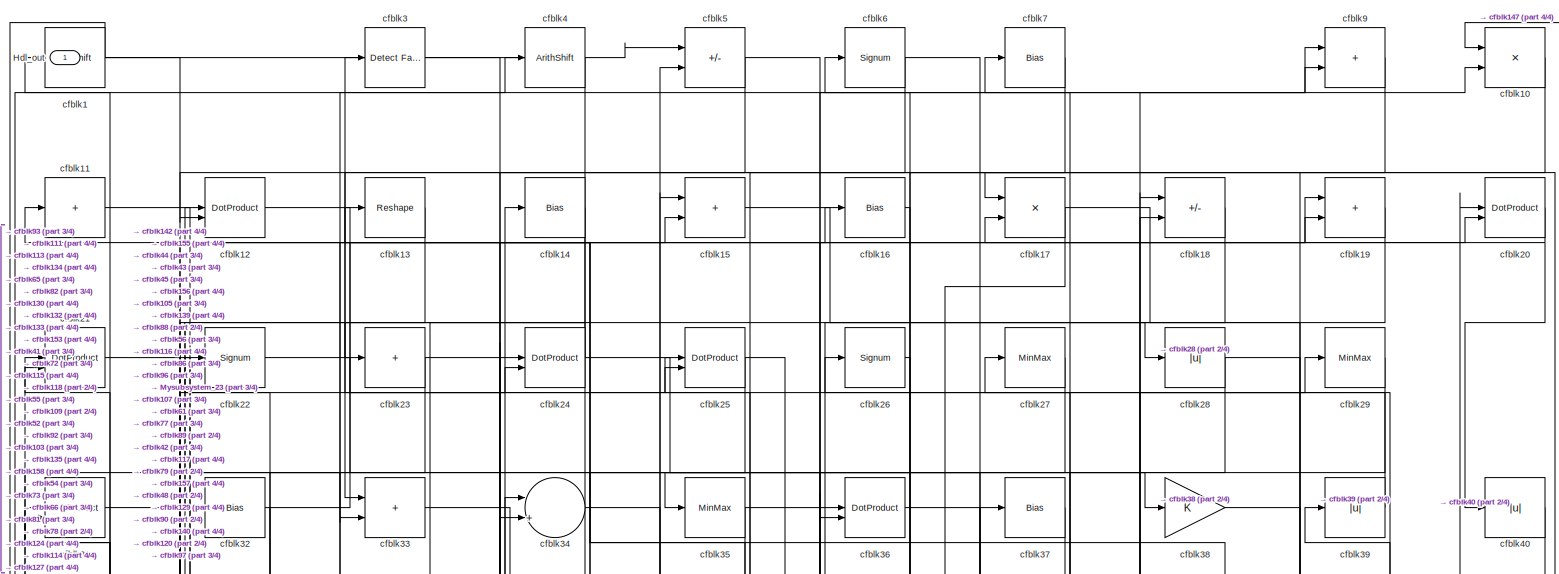
[diagram: root canvas - part 1/4, full width, top band]
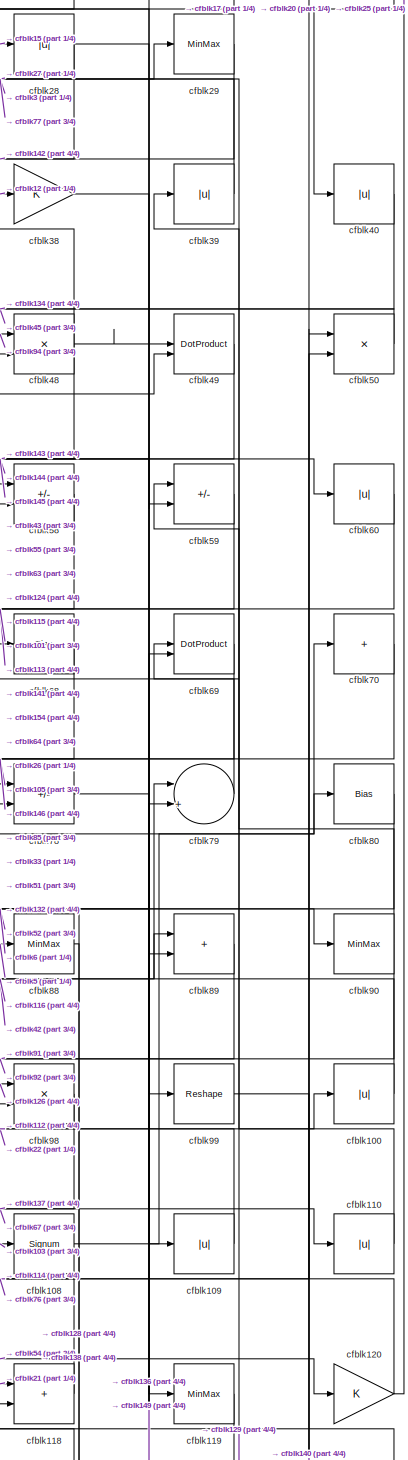
[diagram: root canvas - part 2/4, middle right region]
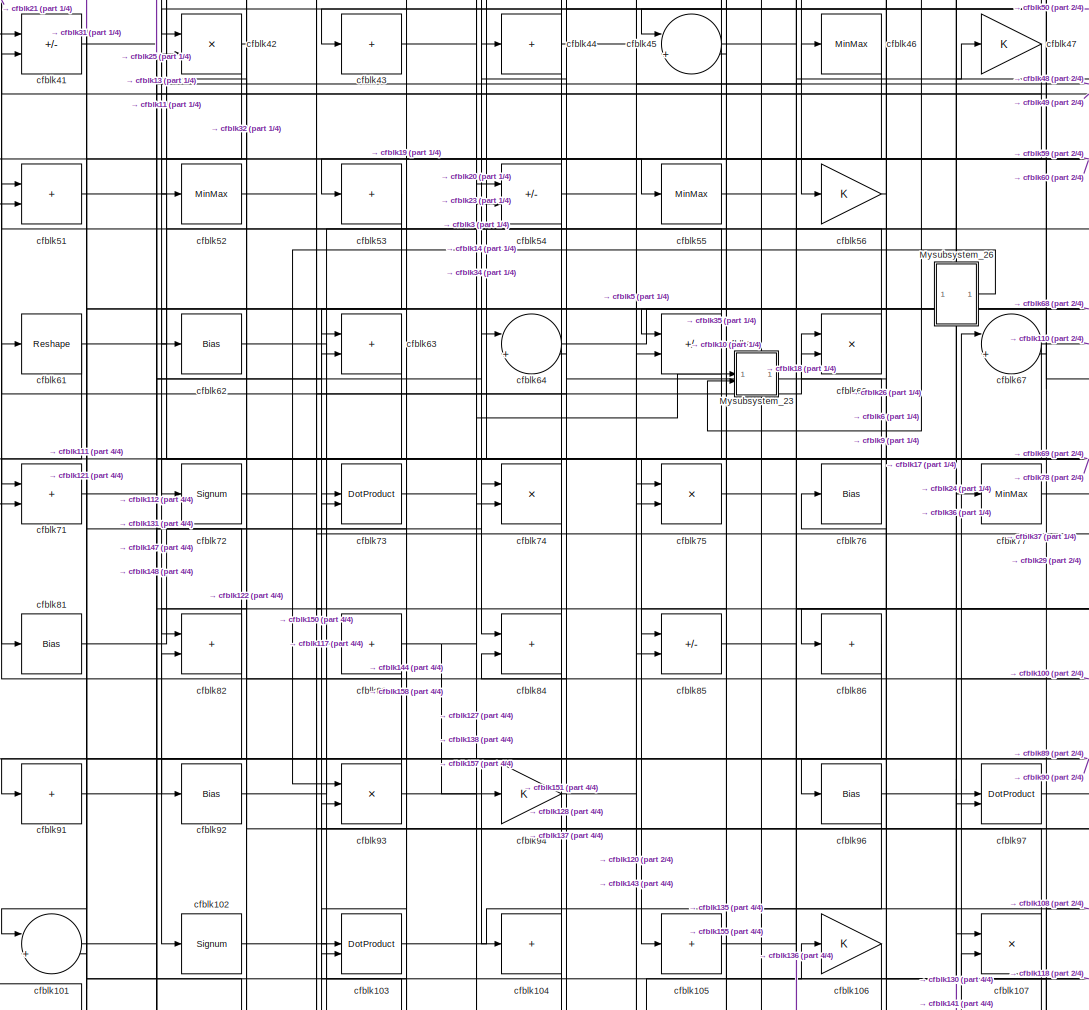
[diagram: root canvas - part 3/4, central region]
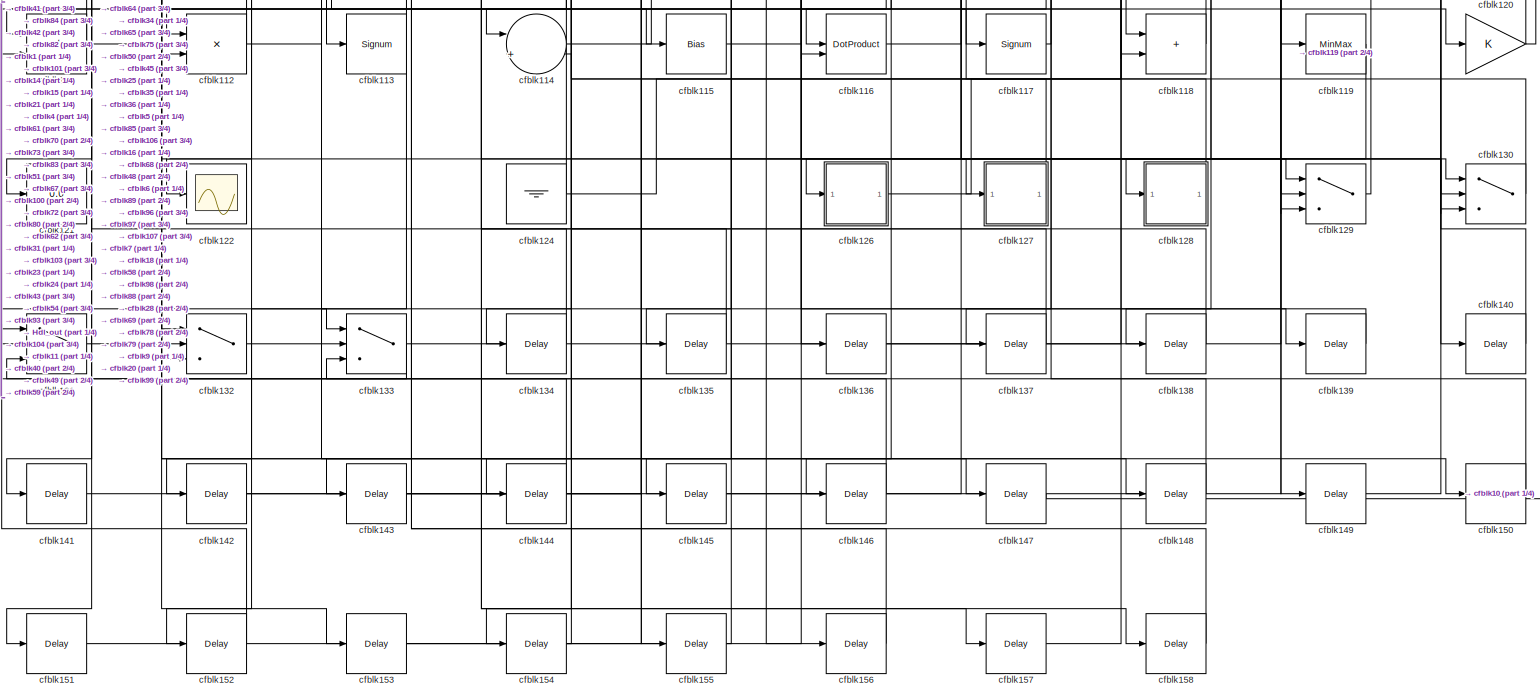
[diagram: root canvas - part 4/4, full width, bottom band]
MODEL slx_be60288d6749
KIND model
CONFIG AbsTol = auto
CONFIG EnableMultiTasking = off
CONFIG FixedStep = auto
CONFIG MaxStep = auto
CONFIG MinStep = auto
CONFIG RelTol = 1e-3
CONFIG SampleTimeConstraint = Unconstrained
CONFIG SolverName = VariableStepAuto
CONFIG StartTime = 0.0
CONFIG StopTime = 10.0
BLOCK [Outport] Hdl_out
  OutDataTypeStr = uint8
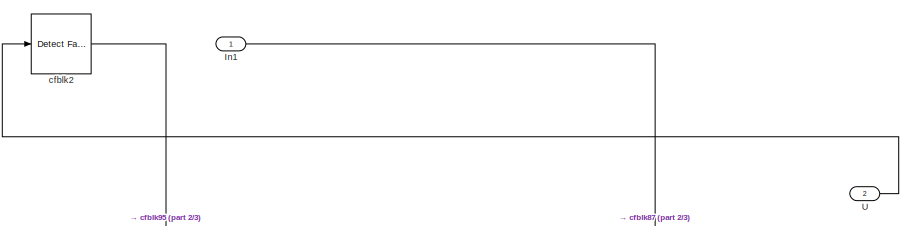
[diagram: Mysubsystem_23 - part 1/3, top center region]
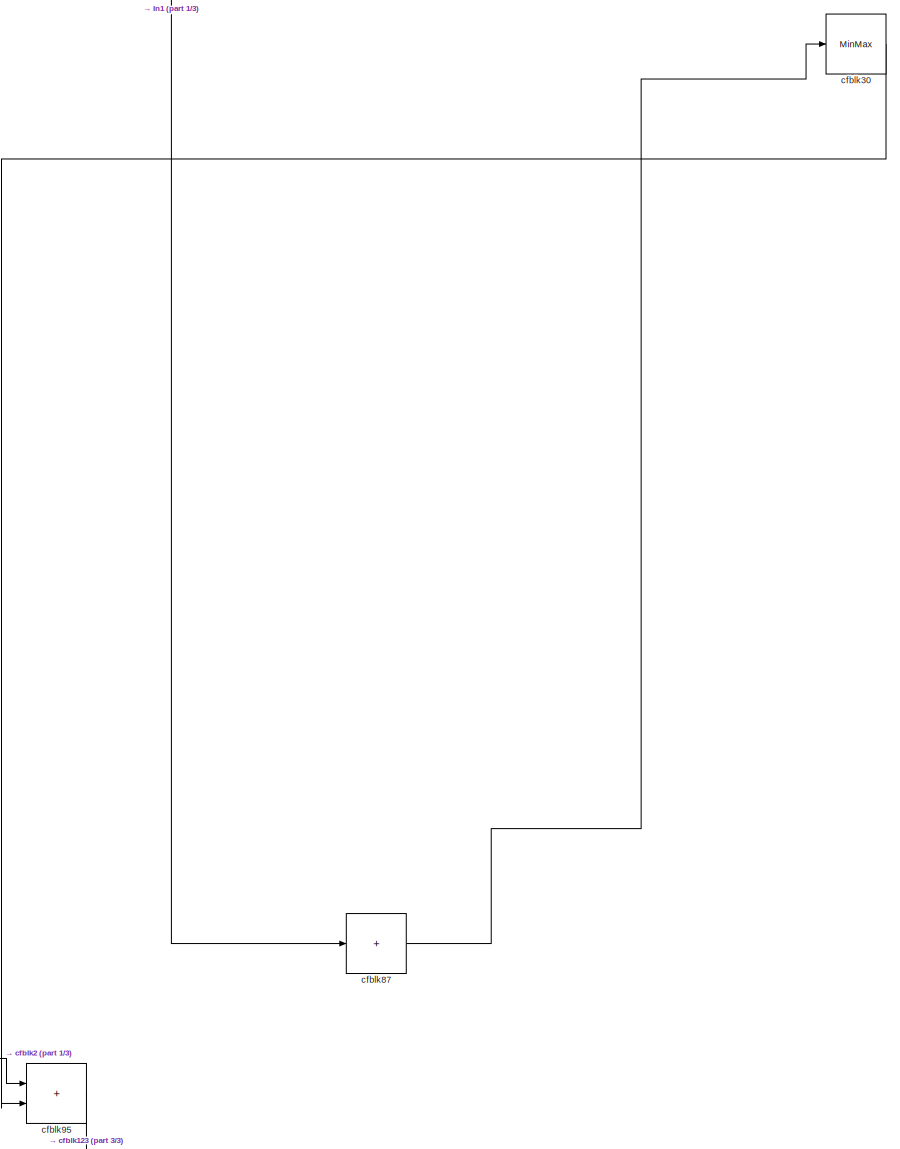
[diagram: Mysubsystem_23 - part 2/3, middle right region]
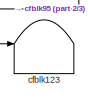
[diagram: Mysubsystem_23 - part 3/3, bottom left region]
BLOCK [SubSystem] Mysubsystem_23
  RTWFcnName = Mysubsystem_23
  RTWFcnNameOpts = User specified
  RTWFileNameOpts = Use function name
  RTWSystemCode = Reusable function
  TreatAsAtomicUnit = on
BLOCK [Inport] Mysubsystem_23/In1
BLOCK [Inport] Mysubsystem_23/U
  Port = 2
BLOCK [Terminator] Mysubsystem_23/cfblk123
BLOCK [Reference] Mysubsystem_23/cfblk2  REF=hdlsllib/Logic and Bit
Operations/Detect Fall
Nonpositive
  SourceBlock = hdlsllib/Logic and Bit\nOperations/Detect Fall\nNonpositive
  SourceType = Detect Fall Nonpositive
BLOCK [MinMax] Mysubsystem_23/cfblk30
BLOCK [Sum] Mysubsystem_23/cfblk87
  IconShape = rectangular
  Inputs = +
BLOCK [Sum] Mysubsystem_23/cfblk95
  IconShape = rectangular
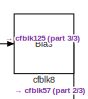
[diagram: Mysubsystem_26 - part 1/3, top right region]
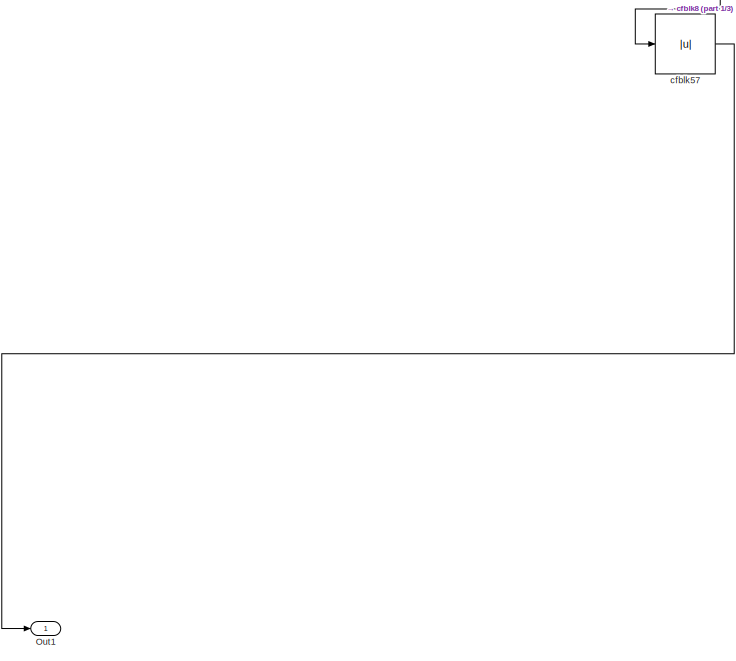
[diagram: Mysubsystem_26 - part 2/3, full width, middle band]
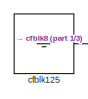
[diagram: Mysubsystem_26 - part 3/3, bottom center region]
BLOCK [SubSystem] Mysubsystem_26
  RTWFcnName = Mysubsystem_26
  RTWFcnNameOpts = User specified
  RTWFileNameOpts = Use function name
  RTWSystemCode = Reusable function
  TreatAsAtomicUnit = on
BLOCK [Outport] Mysubsystem_26/Out1
BLOCK [Ground] Mysubsystem_26/cfblk125
BLOCK [Abs] Mysubsystem_26/cfblk57
  SaturateOnIntegerOverflow = off
BLOCK [Bias] Mysubsystem_26/cfblk8
  Bias = 0.0
  SaturateOnIntegerOverflow = off
BLOCK [Reference] cfblk1  REF=hdlsllib/Logic and Bit
Operations/Bit Shift
  SourceBlock = hdlsllib/Logic and Bit\nOperations/Bit Shift
  SourceType = Bit Shift
BLOCK [Product] cfblk10
  Inputs = */
  OutDataTypeStr = uint8
  RndMeth = Zero
  SaturateOnIntegerOverflow = on
BLOCK [Abs] cfblk100
  OutDataTypeStr = uint8
  SaturateOnIntegerOverflow = off
BLOCK [Sum] cfblk101
  Inputs = |++
  OutDataTypeStr = uint8
BLOCK [Signum] cfblk102
BLOCK [DotProduct] cfblk103
  OutDataTypeStr = uint8
BLOCK [Sum] cfblk104
  IconShape = rectangular
  Inputs = +
  OutDataTypeStr = uint8
BLOCK [Sum] cfblk105
  IconShape = rectangular
  Inputs = +
  OutDataTypeStr = uint8
BLOCK [Gain] cfblk106
  OutDataTypeStr = uint8
BLOCK [Product] cfblk107
  Inputs = */
  OutDataTypeStr = uint8
  RndMeth = Zero
  SaturateOnIntegerOverflow = on
BLOCK [Signum] cfblk108
BLOCK [Abs] cfblk109
  OutDataTypeStr = uint8
  SaturateOnIntegerOverflow = off
BLOCK [Sum] cfblk11
  IconShape = rectangular
  Inputs = +
  OutDataTypeStr = uint8
BLOCK [Abs] cfblk110
  OutDataTypeStr = uint8
  SaturateOnIntegerOverflow = off
BLOCK [Sum] cfblk111
  IconShape = rectangular
  Inputs = +-
  OutDataTypeStr = uint8
BLOCK [Product] cfblk112
  Inputs = */
  OutDataTypeStr = uint8
  RndMeth = Zero
  SaturateOnIntegerOverflow = on
BLOCK [Signum] cfblk113
BLOCK [Sum] cfblk114
  Inputs = |++
  OutDataTypeStr = uint8
BLOCK [Bias] cfblk115
  Bias = 0.0
  SaturateOnIntegerOverflow = off
BLOCK [DotProduct] cfblk116
  OutDataTypeStr = uint8
BLOCK [Signum] cfblk117
BLOCK [Sum] cfblk118
  IconShape = rectangular
  OutDataTypeStr = uint8
BLOCK [MinMax] cfblk119
  OutDataTypeStr = uint8
BLOCK [DotProduct] cfblk12
  OutDataTypeStr = uint8
BLOCK [Gain] cfblk120
  OutDataTypeStr = uint8
BLOCK [Display] cfblk121
  Decimation = 1
BLOCK [Scope] cfblk122
  Floating = off
  NumInputPorts = 1
  ScopeSpecificationString = Simulink.scopes.TimeScopeBlockCfg('CurrentConfiguration', extmgr.ConfigurationSet(extmgr.Configuration('Core','General UI',true),extmgr.Configuration('Core','Source UI',true),extmgr.Configuration('Sources','WiredSimulink',true,'DataLoggingVariableName','ScopeData2','DataLoggingSaveFormat','Array','DataLoggingLimitDataPoints',true,'DataLoggingDecimation','1'),extmgr.Configuration('Visuals','Time Do...<+868ch>
BLOCK [Ground] cfblk124
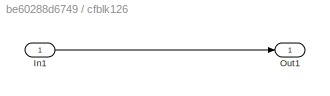
BLOCK [SubSystem] cfblk126
  LibrarySourceBlock = hdlsllib/Ports &\nSubsystems/Subsystem
BLOCK [Inport] cfblk126/In1
BLOCK [Outport] cfblk126/Out1
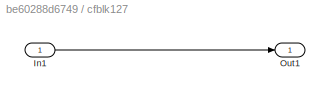
BLOCK [SubSystem] cfblk127
  LibrarySourceBlock = hdlsllib/Ports &\nSubsystems/Subsystem
BLOCK [Inport] cfblk127/In1
BLOCK [Outport] cfblk127/Out1
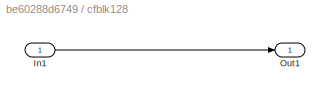
BLOCK [SubSystem] cfblk128
  LibrarySourceBlock = hdlsllib/Ports &\nSubsystems/Subsystem
BLOCK [Inport] cfblk128/In1
BLOCK [Outport] cfblk128/Out1
BLOCK [Switch] cfblk129
  InputSameDT = off
  OutDataTypeStr = uint8
  SaturateOnIntegerOverflow = off
BLOCK [Reshape] cfblk13
BLOCK [Switch] cfblk130
  InputSameDT = off
  OutDataTypeStr = uint8
  SaturateOnIntegerOverflow = off
BLOCK [Switch] cfblk131
  InputSameDT = off
  OutDataTypeStr = uint8
  SaturateOnIntegerOverflow = off
BLOCK [Switch] cfblk132
  InputSameDT = off
  OutDataTypeStr = uint8
  SaturateOnIntegerOverflow = off
BLOCK [Switch] cfblk133
  InputSameDT = off
  OutDataTypeStr = uint8
  SaturateOnIntegerOverflow = off
BLOCK [Delay] cfblk134
  InputPortMap = u0
  SampleTime = 1
BLOCK [Delay] cfblk135
  InputPortMap = u0
  SampleTime = 1
BLOCK [Delay] cfblk136
  InputPortMap = u0
  SampleTime = 1
BLOCK [Delay] cfblk137
  InputPortMap = u0
  SampleTime = 1
BLOCK [Delay] cfblk138
  InputPortMap = u0
  SampleTime = 1
BLOCK [Delay] cfblk139
  InputPortMap = u0
  SampleTime = 1
BLOCK [Bias] cfblk14
  Bias = 0.0
  SaturateOnIntegerOverflow = off
BLOCK [Delay] cfblk140
  InputPortMap = u0
  SampleTime = 1
BLOCK [Delay] cfblk141
  InputPortMap = u0
  SampleTime = 1
BLOCK [Delay] cfblk142
  InputPortMap = u0
  SampleTime = 1
BLOCK [Delay] cfblk143
  InputPortMap = u0
  SampleTime = 1
BLOCK [Delay] cfblk144
  InputPortMap = u0
  SampleTime = 1
BLOCK [Delay] cfblk145
  InputPortMap = u0
  SampleTime = 1
BLOCK [Delay] cfblk146
  InputPortMap = u0
  SampleTime = 1
BLOCK [Delay] cfblk147
  InputPortMap = u0
  SampleTime = 1
BLOCK [Delay] cfblk148
  InputPortMap = u0
  SampleTime = 1
BLOCK [Delay] cfblk149
  InputPortMap = u0
  SampleTime = 1
BLOCK [Sum] cfblk15
  IconShape = rectangular
  OutDataTypeStr = uint8
BLOCK [Delay] cfblk150
  InputPortMap = u0
  SampleTime = 1
BLOCK [Delay] cfblk151
  InputPortMap = u0
  SampleTime = 1
BLOCK [Delay] cfblk152
  InputPortMap = u0
  SampleTime = 1
BLOCK [Delay] cfblk153
  InputPortMap = u0
  SampleTime = 1
BLOCK [Delay] cfblk154
  InputPortMap = u0
  SampleTime = 1
BLOCK [Delay] cfblk155
  InputPortMap = u0
  SampleTime = 1
BLOCK [Delay] cfblk156
  InputPortMap = u0
  SampleTime = 1
BLOCK [Delay] cfblk157
  InputPortMap = u0
  SampleTime = 1
BLOCK [Delay] cfblk158
  InputPortMap = u0
  SampleTime = 1
BLOCK [Bias] cfblk16
  Bias = 0.0
  SaturateOnIntegerOverflow = off
BLOCK [Product] cfblk17
  Inputs = */
  OutDataTypeStr = uint8
  RndMeth = Zero
  SaturateOnIntegerOverflow = on
BLOCK [Sum] cfblk18
  IconShape = rectangular
  Inputs = +-
  OutDataTypeStr = uint8
BLOCK [Sum] cfblk19
  IconShape = rectangular
  OutDataTypeStr = uint8
BLOCK [DotProduct] cfblk20
  OutDataTypeStr = uint8
BLOCK [DotProduct] cfblk21
  OutDataTypeStr = uint8
BLOCK [Signum] cfblk22
BLOCK [Sum] cfblk23
  IconShape = rectangular
  Inputs = +
  OutDataTypeStr = uint8
BLOCK [DotProduct] cfblk24
  OutDataTypeStr = uint8
BLOCK [DotProduct] cfblk25
  OutDataTypeStr = uint8
BLOCK [Signum] cfblk26
BLOCK [MinMax] cfblk27
  OutDataTypeStr = uint8
BLOCK [Abs] cfblk28
  OutDataTypeStr = uint8
  SaturateOnIntegerOverflow = off
BLOCK [MinMax] cfblk29
  OutDataTypeStr = uint8
BLOCK [Reference] cfblk3  REF=hdlsllib/Logic and Bit
Operations/Detect Fall
Negative
  SourceBlock = hdlsllib/Logic and Bit\nOperations/Detect Fall\nNegative
  SourceType = Detect Fall Negative
BLOCK [DotProduct] cfblk31
  OutDataTypeStr = uint8
BLOCK [Bias] cfblk32
  Bias = 0.0
  SaturateOnIntegerOverflow = off
BLOCK [Sum] cfblk33
  IconShape = rectangular
  OutDataTypeStr = uint8
BLOCK [Sum] cfblk34
  Inputs = |++
  OutDataTypeStr = uint8
BLOCK [MinMax] cfblk35
  OutDataTypeStr = uint8
BLOCK [DotProduct] cfblk36
  OutDataTypeStr = uint8
BLOCK [Bias] cfblk37
  Bias = 0.0
  SaturateOnIntegerOverflow = off
BLOCK [Gain] cfblk38
  OutDataTypeStr = uint8
BLOCK [Abs] cfblk39
  OutDataTypeStr = uint8
  SaturateOnIntegerOverflow = off
BLOCK [ArithShift] cfblk4
  BitShiftNumber = 8
  InputPortMap = u0
BLOCK [Abs] cfblk40
  OutDataTypeStr = uint8
  SaturateOnIntegerOverflow = off
BLOCK [Sum] cfblk41
  IconShape = rectangular
  Inputs = +-
  OutDataTypeStr = uint8
BLOCK [Product] cfblk42
  Inputs = */
  OutDataTypeStr = uint8
  RndMeth = Zero
  SaturateOnIntegerOverflow = on
BLOCK [Sum] cfblk43
  IconShape = rectangular
  Inputs = +
  OutDataTypeStr = uint8
BLOCK [Sum] cfblk44
  IconShape = rectangular
  Inputs = +
  OutDataTypeStr = uint8
BLOCK [Sum] cfblk45
  Inputs = |++
  OutDataTypeStr = uint8
BLOCK [MinMax] cfblk46
  OutDataTypeStr = uint8
BLOCK [Gain] cfblk47
  OutDataTypeStr = uint8
BLOCK [Product] cfblk48
  Inputs = */
  OutDataTypeStr = uint8
  RndMeth = Zero
  SaturateOnIntegerOverflow = on
BLOCK [DotProduct] cfblk49
  OutDataTypeStr = uint8
BLOCK [Sum] cfblk5
  IconShape = rectangular
  Inputs = +-
  OutDataTypeStr = uint8
BLOCK [Product] cfblk50
  Inputs = */
  OutDataTypeStr = uint8
  RndMeth = Zero
  SaturateOnIntegerOverflow = on
BLOCK [Sum] cfblk51
  IconShape = rectangular
  OutDataTypeStr = uint8
BLOCK [MinMax] cfblk52
  OutDataTypeStr = uint8
BLOCK [Sum] cfblk53
  IconShape = rectangular
  Inputs = +
  OutDataTypeStr = uint8
BLOCK [Sum] cfblk54
  IconShape = rectangular
  Inputs = +-
  OutDataTypeStr = uint8
BLOCK [MinMax] cfblk55
  OutDataTypeStr = uint8
BLOCK [Gain] cfblk56
  OutDataTypeStr = uint8
BLOCK [Sum] cfblk58
  IconShape = rectangular
  Inputs = +-
  OutDataTypeStr = uint8
BLOCK [Sum] cfblk59
  IconShape = rectangular
  Inputs = +-
  OutDataTypeStr = uint8
BLOCK [Signum] cfblk6
BLOCK [Abs] cfblk60
  OutDataTypeStr = uint8
  SaturateOnIntegerOverflow = off
BLOCK [Reshape] cfblk61
BLOCK [Bias] cfblk62
  Bias = 0.0
  SaturateOnIntegerOverflow = off
BLOCK [Sum] cfblk63
  IconShape = rectangular
  OutDataTypeStr = uint8
BLOCK [Sum] cfblk64
  Inputs = |++
  OutDataTypeStr = uint8
BLOCK [Sum] cfblk65
  IconShape = rectangular
  Inputs = +-
  OutDataTypeStr = uint8
BLOCK [Product] cfblk66
  Inputs = */
  OutDataTypeStr = uint8
  RndMeth = Zero
  SaturateOnIntegerOverflow = on
BLOCK [Sum] cfblk67
  Inputs = |++
  OutDataTypeStr = uint8
BLOCK [Bias] cfblk68
  Bias = 0.0
  SaturateOnIntegerOverflow = off
BLOCK [DotProduct] cfblk69
  OutDataTypeStr = uint8
BLOCK [Bias] cfblk7
  Bias = 0.0
  SaturateOnIntegerOverflow = off
BLOCK [Sum] cfblk70
  IconShape = rectangular
  Inputs = +
  OutDataTypeStr = uint8
BLOCK [Sum] cfblk71
  IconShape = rectangular
  OutDataTypeStr = uint8
BLOCK [Signum] cfblk72
BLOCK [DotProduct] cfblk73
  OutDataTypeStr = uint8
BLOCK [Product] cfblk74
  Inputs = */
  OutDataTypeStr = uint8
  RndMeth = Zero
  SaturateOnIntegerOverflow = on
BLOCK [Product] cfblk75
  Inputs = */
  OutDataTypeStr = uint8
  RndMeth = Zero
  SaturateOnIntegerOverflow = on
BLOCK [Bias] cfblk76
  Bias = 0.0
  SaturateOnIntegerOverflow = off
BLOCK [MinMax] cfblk77
  OutDataTypeStr = uint8
BLOCK [Sum] cfblk78
  IconShape = rectangular
  Inputs = +-
  OutDataTypeStr = uint8
BLOCK [Sum] cfblk79
  Inputs = |++
  OutDataTypeStr = uint8
BLOCK [Bias] cfblk80
  Bias = 0.0
  SaturateOnIntegerOverflow = off
BLOCK [Bias] cfblk81
  Bias = 0.0
  SaturateOnIntegerOverflow = off
BLOCK [Sum] cfblk82
  IconShape = rectangular
  OutDataTypeStr = uint8
BLOCK [Sum] cfblk83
  IconShape = rectangular
  Inputs = +
  OutDataTypeStr = uint8
BLOCK [Sum] cfblk84
  IconShape = rectangular
  OutDataTypeStr = uint8
BLOCK [Sum] cfblk85
  IconShape = rectangular
  Inputs = +-
  OutDataTypeStr = uint8
BLOCK [Sum] cfblk86
  IconShape = rectangular
  Inputs = +
  OutDataTypeStr = uint8
BLOCK [MinMax] cfblk88
  OutDataTypeStr = uint8
BLOCK [Sum] cfblk89
  IconShape = rectangular
  OutDataTypeStr = uint8
BLOCK [Sum] cfblk9
  IconShape = rectangular
  OutDataTypeStr = uint8
BLOCK [MinMax] cfblk90
  OutDataTypeStr = uint8
BLOCK [Sum] cfblk91
  IconShape = rectangular
  Inputs = +
  OutDataTypeStr = uint8
BLOCK [Bias] cfblk92
  Bias = 0.0
  SaturateOnIntegerOverflow = off
BLOCK [Product] cfblk93
  Inputs = */
  OutDataTypeStr = uint8
  RndMeth = Zero
  SaturateOnIntegerOverflow = on
BLOCK [Gain] cfblk94
  OutDataTypeStr = uint8
BLOCK [Bias] cfblk96
  Bias = 0.0
  SaturateOnIntegerOverflow = off
BLOCK [DotProduct] cfblk97
  OutDataTypeStr = uint8
BLOCK [Product] cfblk98
  Inputs = */
  OutDataTypeStr = uint8
  RndMeth = Zero
  SaturateOnIntegerOverflow = on
BLOCK [Reshape] cfblk99
LINE Mysubsystem_23/In1:1 -> Mysubsystem_23/cfblk87:1
LINE Mysubsystem_23/U:1 -> Mysubsystem_23/cfblk2:1
LINE Mysubsystem_23/cfblk2:1 -> Mysubsystem_23/cfblk95:1
LINE Mysubsystem_23/cfblk30:1 -> Mysubsystem_23/cfblk95:2
LINE Mysubsystem_23/cfblk87:1 -> Mysubsystem_23/cfblk30:1
LINE Mysubsystem_23/cfblk95:1 -> Mysubsystem_23/cfblk123:1
LINE Mysubsystem_26/cfblk125:1 -> Mysubsystem_26/cfblk8:1
LINE Mysubsystem_26/cfblk57:1 -> Mysubsystem_26/Out1:1
LINE Mysubsystem_26/cfblk8:1 -> Mysubsystem_26/cfblk57:1
LINE Mysubsystem_26:1 -> cfblk93:1
NET cfblk100:1 -> cfblk42:2, cfblk79:1
NET cfblk101:1 -> cfblk148:1, cfblk46:1
LINE cfblk102:1 -> cfblk106:1
LINE cfblk103:1 -> cfblk108:1
LINE cfblk104:1 -> cfblk151:1
NET cfblk105:1 -> cfblk47:1, cfblk9:2
LINE cfblk106:1 -> cfblk111:2
NET cfblk107:1 -> cfblk112:1, cfblk66:2, cfblk93:2
LINE cfblk108:1 -> cfblk70:1
LINE cfblk109:1 -> cfblk22:1
LINE cfblk10:1 -> cfblk65:1
NET cfblk110:1 -> cfblk39:1, cfblk69:1
NET cfblk111:1 -> cfblk15:2, cfblk4:1
NET cfblk112:1 -> cfblk100:1, cfblk51:1
NET cfblk113:1 -> cfblk152:1, cfblk31:1
LINE cfblk114:1 -> cfblk50:2
LINE cfblk115:1 -> cfblk58:2
NET cfblk116:1 -> cfblk48:2, cfblk89:1
LINE cfblk117:1 -> cfblk7:1
LINE cfblk118:1 -> cfblk76:1
LINE cfblk119:1 -> cfblk126:1
LINE cfblk11:1 -> cfblk55:1
NET cfblk120:1 -> cfblk17:1, cfblk25:2
NET cfblk124:1 -> Hdl_out:1, cfblk129:2, cfblk58:1
LINE cfblk126/In1:1 -> cfblk126/Out1:1
LINE cfblk126:1 -> cfblk98:1
LINE cfblk127/In1:1 -> cfblk127/Out1:1
LINE cfblk127:1 -> cfblk11:1
LINE cfblk128/In1:1 -> cfblk128/Out1:1
NET cfblk128:1 -> cfblk61:1, cfblk64:2
LINE cfblk129:1 -> cfblk59:1
LINE cfblk12:1 -> cfblk38:1
LINE cfblk130:1 -> cfblk67:1
LINE cfblk131:1 -> cfblk73:1
LINE cfblk132:1 -> cfblk80:1
NET cfblk133:1 -> cfblk131:3, cfblk18:1
LINE cfblk134:1 -> cfblk1:1
LINE cfblk135:1 -> cfblk24:1
LINE cfblk136:1 -> cfblk69:2
LINE cfblk137:1 -> cfblk84:2
LINE cfblk138:1 -> cfblk54:1
LINE cfblk139:1 -> cfblk133:2
LINE cfblk13:1 -> cfblk72:1
LINE cfblk140:1 -> cfblk20:1
LINE cfblk141:1 -> cfblk97:1
LINE cfblk142:1 -> cfblk15:1
LINE cfblk143:1 -> cfblk65:2
LINE cfblk144:1 -> cfblk103:2
LINE cfblk145:1 -> cfblk79:2
LINE cfblk146:1 -> cfblk132:1
LINE cfblk147:1 -> cfblk10:1
LINE cfblk148:1 -> cfblk107:2
LINE cfblk149:1 -> cfblk50:1
NET cfblk14:1 -> cfblk132:3, cfblk32:1
LINE cfblk150:1 -> cfblk41:1
LINE cfblk151:1 -> cfblk75:1
LINE cfblk152:1 -> cfblk131:1
LINE cfblk153:1 -> cfblk36:1
LINE cfblk154:1 -> cfblk114:2
LINE cfblk155:1 -> cfblk45:2
LINE cfblk156:1 -> cfblk133:3
LINE cfblk157:1 -> cfblk18:2
LINE cfblk158:1 -> cfblk73:2
LINE cfblk15:1 -> cfblk28:1
LINE cfblk16:1 -> cfblk116:1
NET cfblk17:1 -> Mysubsystem_23:2, cfblk109:1
LINE cfblk18:1 -> cfblk56:1
LINE cfblk19:1 -> cfblk103:1
NET cfblk1:1 -> cfblk130:1, cfblk133:1, cfblk33:2
NET cfblk20:1 -> cfblk17:2, cfblk40:1
NET cfblk21:1 -> cfblk115:1, cfblk118:1
LINE cfblk22:1 -> cfblk24:2
NET cfblk23:1 -> cfblk158:1, cfblk81:1
NET cfblk24:1 -> cfblk23:1, cfblk36:2, cfblk77:1
NET cfblk25:1 -> cfblk114:1, cfblk156:1
LINE cfblk26:1 -> cfblk96:1
LINE cfblk27:1 -> cfblk35:1
NET cfblk28:1 -> cfblk119:1, cfblk142:1
LINE cfblk29:1 -> cfblk67:2
LINE cfblk31:1 -> cfblk153:1
NET cfblk32:1 -> cfblk16:1, cfblk52:1
LINE cfblk33:1 -> cfblk78:1
LINE cfblk34:1 -> cfblk155:1
NET cfblk35:1 -> cfblk129:1, cfblk43:1
LINE cfblk36:1 -> cfblk107:1
LINE cfblk37:1 -> cfblk42:1
LINE cfblk38:1 -> cfblk99:1
LINE cfblk39:1 -> cfblk3:1
LINE cfblk3:1 -> Mysubsystem_23:1
LINE cfblk40:1 -> cfblk134:1
LINE cfblk41:1 -> cfblk25:1
NET cfblk42:1 -> cfblk111:1, cfblk62:1
NET cfblk43:1 -> cfblk127:1, cfblk59:2
LINE cfblk44:1 -> cfblk5:2
NET cfblk45:1 -> cfblk13:1, cfblk19:1, cfblk51:2
LINE cfblk46:1 -> cfblk53:1
NET cfblk47:1 -> cfblk41:2, cfblk85:1
NET cfblk48:1 -> cfblk12:1, cfblk145:1, cfblk49:1
NET cfblk49:1 -> cfblk143:1, cfblk144:1, cfblk63:1
LINE cfblk4:1 -> cfblk5:1
LINE cfblk50:1 -> cfblk45:1
NET cfblk51:1 -> cfblk74:1, cfblk78:2
LINE cfblk52:1 -> cfblk90:1
LINE cfblk53:1 -> cfblk82:1
NET cfblk54:1 -> cfblk120:1, cfblk75:2
LINE cfblk55:1 -> cfblk60:1
LINE cfblk56:1 -> cfblk6:1
LINE cfblk58:1 -> cfblk141:1
NET cfblk59:1 -> cfblk113:1, cfblk154:1
NET cfblk5:1 -> cfblk12:2, cfblk139:1, cfblk88:1
LINE cfblk60:1 -> cfblk101:1
NET cfblk61:1 -> cfblk101:2, cfblk147:1, cfblk37:1, cfblk71:2
LINE cfblk62:1 -> cfblk117:1
LINE cfblk63:1 -> cfblk102:1
LINE cfblk64:1 -> cfblk68:1
NET cfblk65:1 -> cfblk31:2, cfblk84:1
LINE cfblk66:1 -> cfblk14:1
NET cfblk67:1 -> cfblk110:1, cfblk122:1
LINE cfblk68:1 -> cfblk146:1
NET cfblk69:1 -> cfblk105:1, cfblk85:2
NET cfblk6:1 -> cfblk118:2, cfblk130:2, cfblk54:2, cfblk89:2
NET cfblk70:1 -> cfblk132:2, cfblk98:2
LINE cfblk71:1 -> cfblk64:1
NET cfblk72:1 -> cfblk150:1, cfblk66:1, cfblk9:1
LINE cfblk73:1 -> cfblk20:2
LINE cfblk74:1 -> cfblk71:1
LINE cfblk75:1 -> cfblk97:2
LINE cfblk76:1 -> cfblk44:1
LINE cfblk77:1 -> cfblk29:1
LINE cfblk78:1 -> cfblk149:1
LINE cfblk79:1 -> cfblk26:1
LINE cfblk7:1 -> cfblk33:1
NET cfblk80:1 -> cfblk116:2, cfblk128:1
NET cfblk81:1 -> cfblk34:1, cfblk83:1
NET cfblk82:1 -> cfblk121:1, cfblk21:2
NET cfblk83:1 -> cfblk112:2, cfblk74:2, cfblk94:1
LINE cfblk84:1 -> cfblk131:2
LINE cfblk85:1 -> cfblk136:1
LINE cfblk86:1 -> cfblk104:1
LINE cfblk88:1 -> cfblk138:1
LINE cfblk89:1 -> cfblk91:1
NET cfblk90:1 -> cfblk27:1, cfblk92:1
NET cfblk91:1 -> cfblk49:2, cfblk63:2, cfblk82:2
NET cfblk92:1 -> cfblk19:2, cfblk34:2
NET cfblk93:1 -> cfblk157:1, cfblk21:1
LINE cfblk94:1 -> cfblk48:1
NET cfblk96:1 -> cfblk130:3, cfblk135:1
LINE cfblk97:1 -> cfblk10:2
LINE cfblk98:1 -> cfblk137:1
LINE cfblk99:1 -> cfblk140:1
NET cfblk9:1 -> cfblk129:3, cfblk86:1
note: NET lines group one-source signal fan-out (src -> all destinations, sorted); 1:1 wires keep LINE
